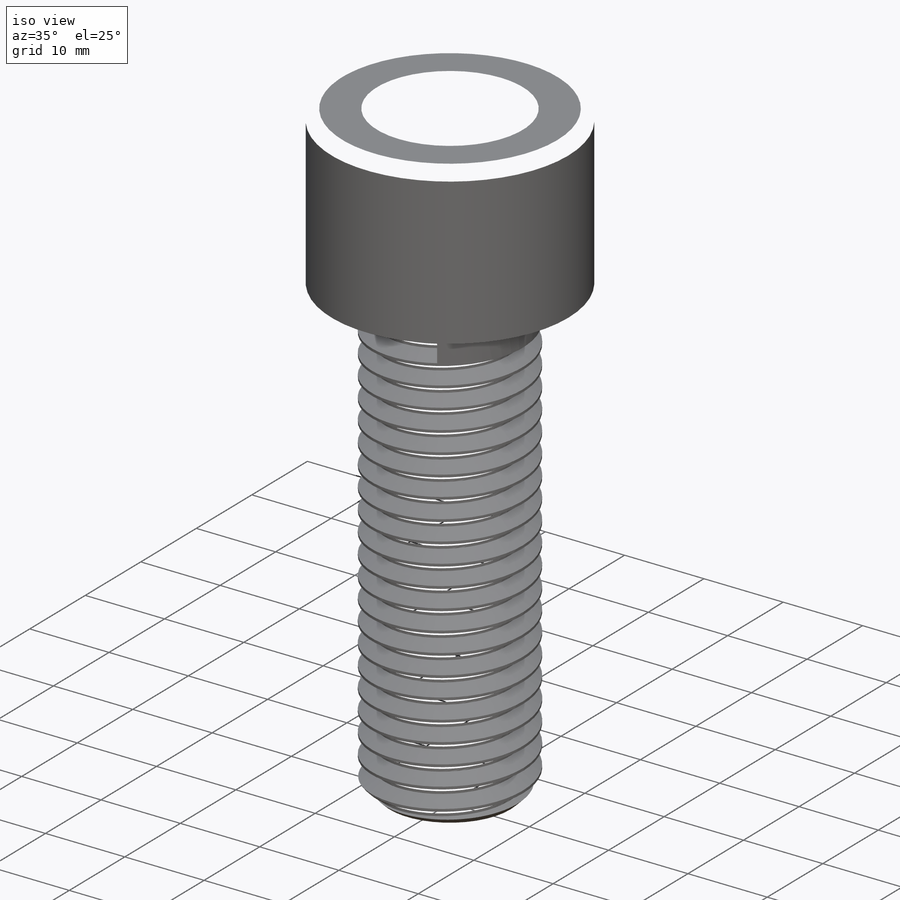
[diagram: iso view]
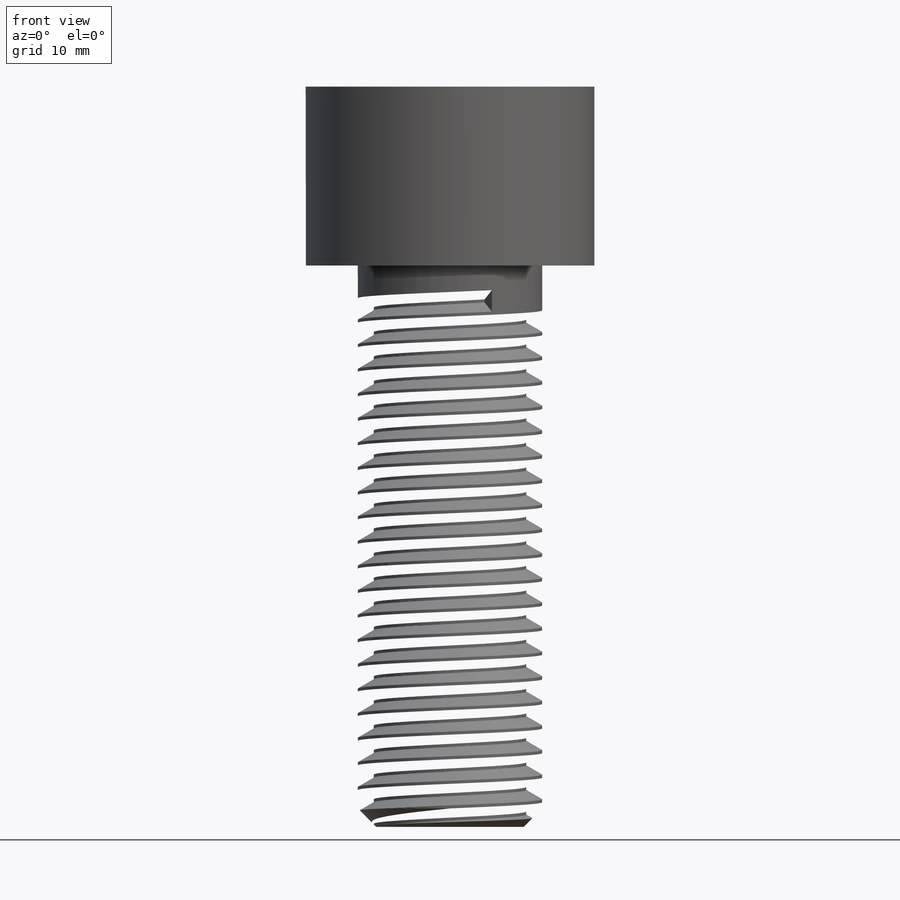
[diagram: front view]
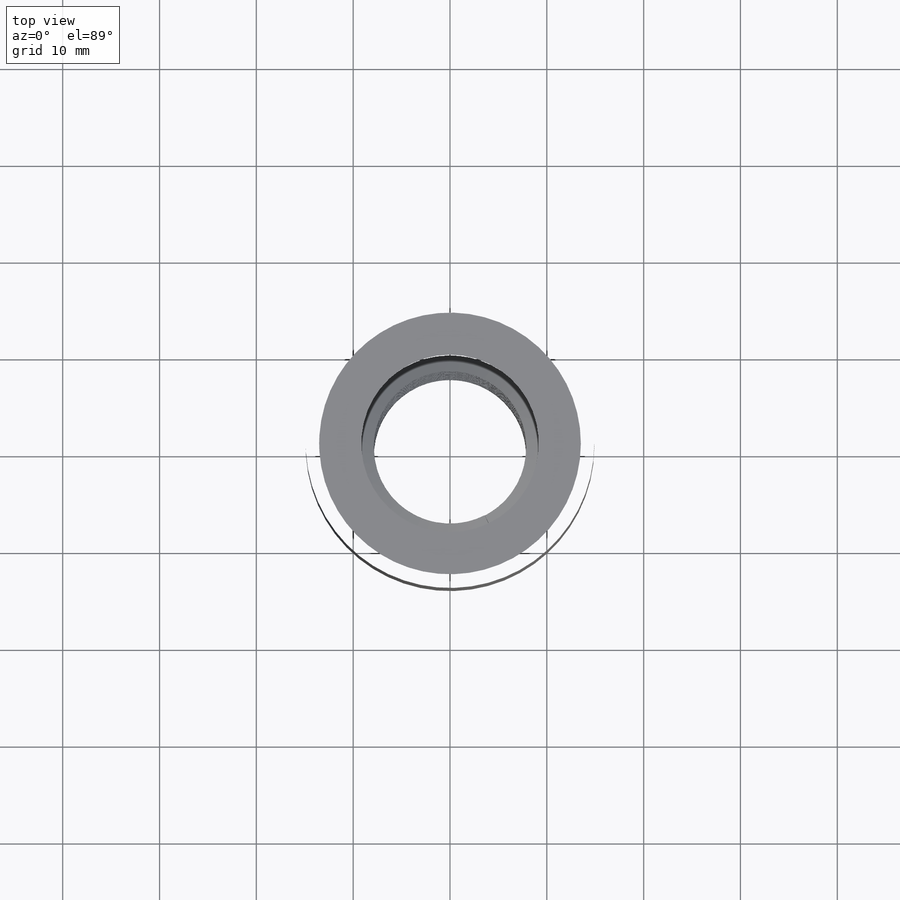
[diagram: top view]
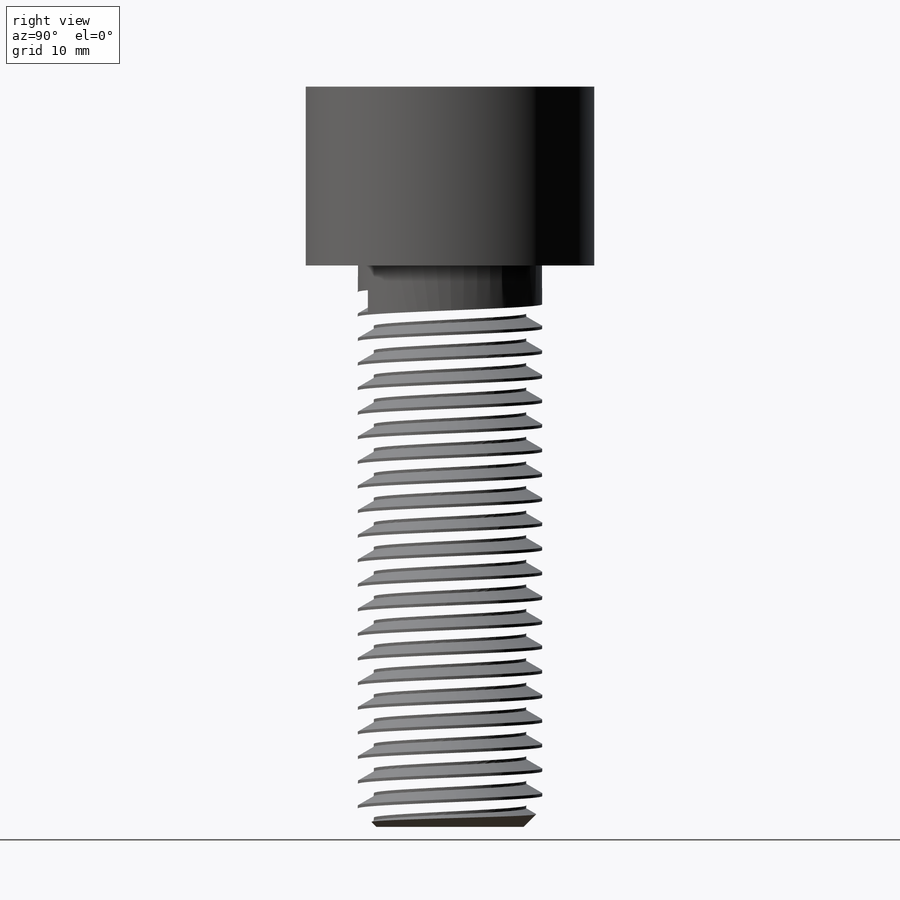
[diagram: right view]
SOLIDWORKS PART (.sldprt)
format: sldprt  version: not decoded by parser v0  size: 1,228,288 bytes
history: native  units: mm
features: sketch x14, cut_extrude x5, revolve x3, sweep x2, chamfer x2, material x1, mirror x1, helix x1, extrude x1 + 2 further entries (+16 scaffold rows collapsed; 1 parser-record rows omitted)
feature tree (49):
  scaffold x16  (default folders/planes/origin — collapsed)
  material  "Material <not specified>"
  "Design Table"
  "Design Table"
  sketch  "Sketch1"  dims[c1.Body Dia=~79.077204mm c1.Supplier D=38.1mm c1.D1=~3.022476mm c2.D1=45.0deg c2.Screw Head DIa=~13.443317mm c2.Screw Head Ht XXX=19.8755mm c2.Inside Wd=44.45mm c2.Screw Dia=19.05mm c2.Thread Lg=26.9875mm c2.Oall Ht=149.225mm c2.Thickness=19.05mm c2.Suppier H=~59.113125mm c2.D3=30.988mm c2.D4=20.475mm c2.Screw Head Dia=12.6mm c2.D5=13.335mm c2.D6=10.0965mm c2.Oall Wd=89.408mm c3.D1=~3.603743mm c4.D1=45.0deg c4.Supplier H=56.5mm c4.D2=~7.286625mm c4.Body Dia=25.4mm c4.Supplier H or M=113.9mm c4.Body Ht=30.988mm c4.Inner Gap=52.324mm c5.Body Dia=25.4mm c6.Body Dia=50.546mm]
  revolve  "Revolve1"  Angle=360deg
  sketch  "Sketch5"  dims[D1=19.05mm]
  sketch  "Sketch6"
  sweep  "Sweep1"
  sketch  "Sketch7"
  cut_extrude  "Cut-Extrude3"  [1 undecoded]
  mirror  "Mirror1"
  sketch  "Sketch12"
  cut_extrude  "Cut-Extrude5"  [1 undecoded]
  sketch  "Sketch8"  dims[D1=23.8125mm]
  cut_extrude  "Cut-Extrude4"  [1 undecoded]
  sketch  "Sketch9"
  revolve  "Revolve3"  Angle=360deg
  sketch  "Sketch2"
  revolve  "Revolve2"  Angle=360deg
  sketch  "Sketch10"  dims[D1=0.0mm]
  helix  "Helix/Spiral1"  Pitch=55.4355mm
  sketch  "Sketch11"  dims[c1.D1=~1.553977mm c2.D1=60.0deg c2.D2=0.3175mm c2.D3=1.27mm]
  chamfer  "Chamfer2"  Distance=1.905mm Angle=45deg
  sweep  "Cut-Sweep1"
  sketch  "Sketch3"  dims[Hex=15.875mm]
  cut_extrude  "Cut-Extrude1"  Depth=11.1125mm
  sketch  "Sketch4"
  cut_extrude  "Cut-Extrude2"  Depth=11.1125mm
  chamfer  "Chamfer1"  Distance=1.391285mm Angle=45deg
  parser-record x1  (decoder bookkeeping rows leaked as tree rows — omitted from the tree; the rows remain in map.json)
  sketch  "Sketch15"
  extrude  "Extrude11"  Depth=8mm
  sketch  "Sketch14"  dims[D1=5.08mm D2=19.05mm]
decode coverage: 16 of 29 modeling features carry decoded parameters; 2 rows unclassified (native names shown)
note: ~ marks probable driven/reference dimensions
note: 3 parameter values undecoded
summary: no parameter record found for 3 features
note: suppression state not decoded; provenance and decode notes live in map.json
